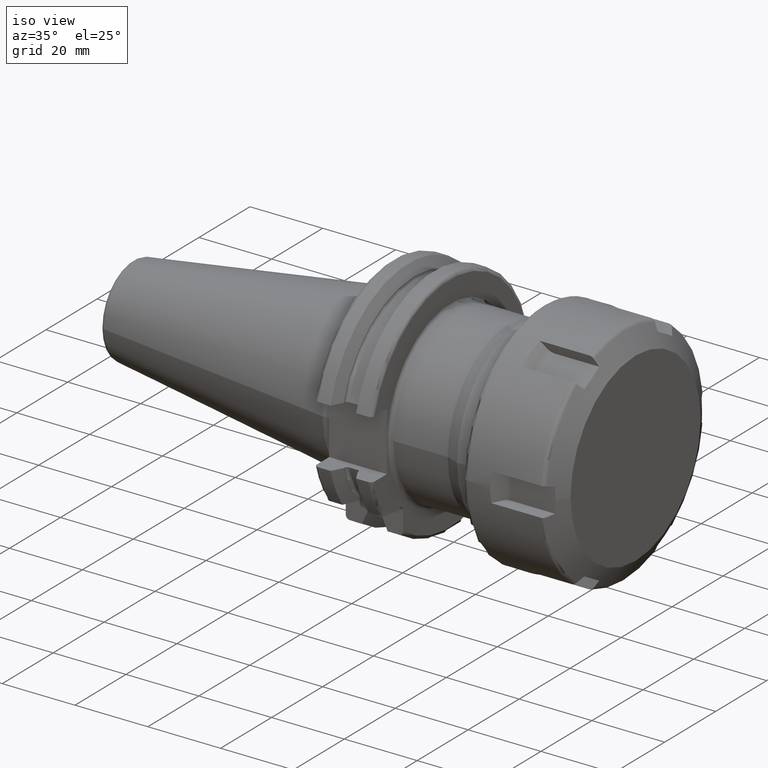
[diagram: clean part render]
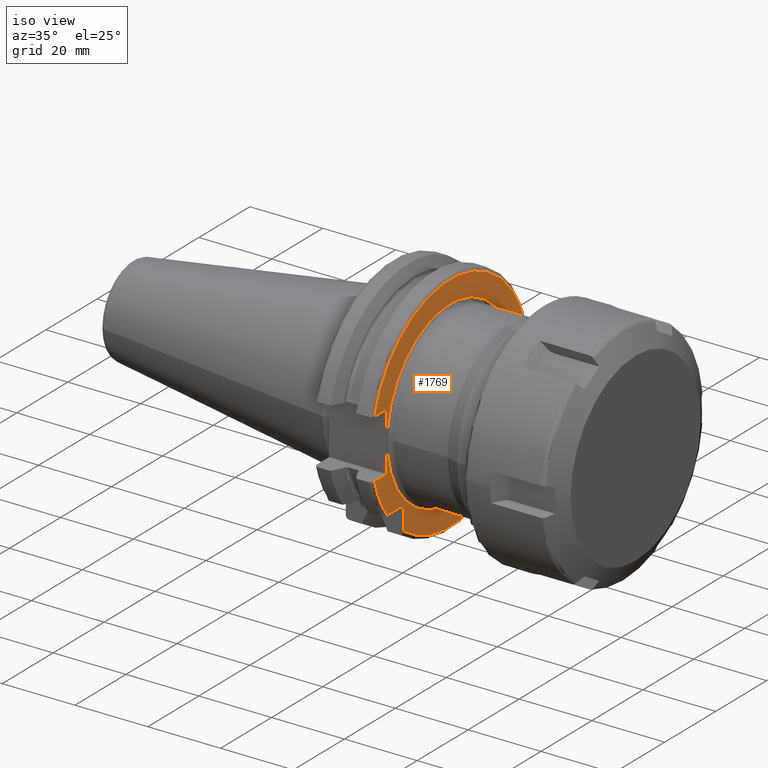
[diagram: same view with one face highlighted and labeled with its STEP entity id]
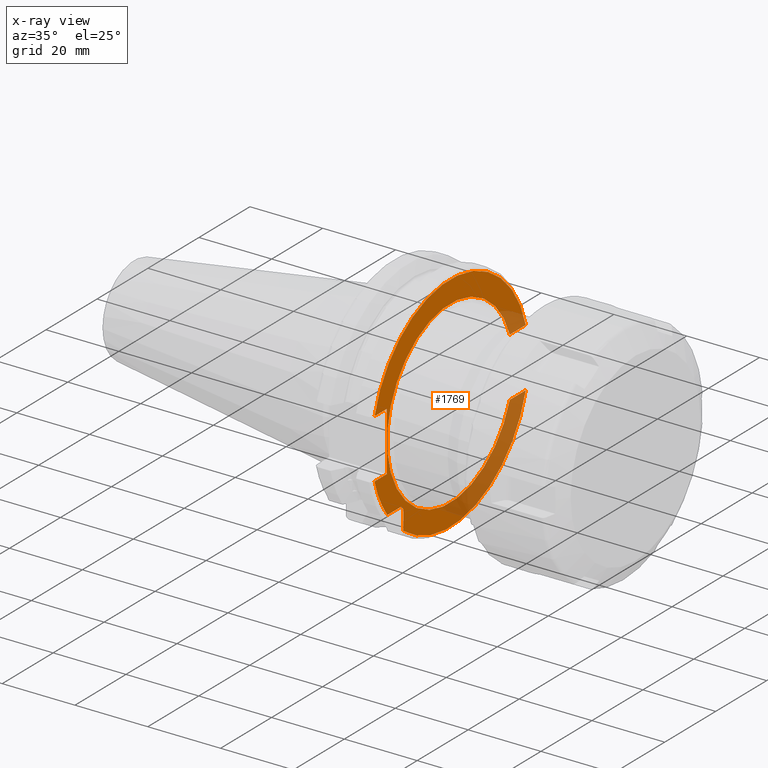
[diagram: x-ray of the same camera — body ghosted, the highlighted face saturated]
A machine part, iso view. The second image highlights one B-rep face of the part: STEP entity #1769.
The next image is the same camera in x-ray: the body ghosted, the highlighted face saturated — about 29% of this face is hidden behind the body in this view.
In plain terms, the highlighted planar face has unit normal (1, 0, 0).
Its self-contained STEP definition (entity closure, byte-faithful):
#134=DIRECTION('',(0.E0,-1.E0,0.E0));
#135=VECTOR('',#134,6.289935128944E0);
#136=CARTESIAN_POINT('',(1.905E1,2.967695075728E1,-8.1E0));
#137=LINE('',#136,#135);
#138=DIRECTION('',(0.E0,0.E0,1.E0));
#139=VECTOR('',#138,4.990259339464E0);
#140=CARTESIAN_POINT('',(1.905E1,-1.835E1,-2.469025933946E1));
#141=LINE('',#140,#139);
#142=DIRECTION('',(0.E0,-1.E0,0.E0));
#143=VECTOR('',#142,4.990259339464E0);
#144=CARTESIAN_POINT('',(1.905E1,-1.97E1,-1.835E1));
#145=LINE('',#144,#143);
#146=DIRECTION('',(0.E0,1.E0,0.E0));
#147=VECTOR('',#146,4.826950757280E0);
#148=CARTESIAN_POINT('',(1.905E1,-2.967695075728E1,-8.1E0));
#149=LINE('',#148,#147);
#150=DIRECTION('',(0.E0,0.E0,1.E0));
#151=VECTOR('',#150,1.62E1);
#152=CARTESIAN_POINT('',(1.905E1,-2.485E1,-8.1E0));
#153=LINE('',#152,#151);
#154=DIRECTION('',(0.E0,1.E0,0.E0));
#155=VECTOR('',#154,4.826950757280E0);
#156=CARTESIAN_POINT('',(1.905E1,-2.967695075728E1,8.1E0));
#157=LINE('',#156,#155);
#158=DIRECTION('',(0.E0,-1.E0,0.E0));
#159=VECTOR('',#158,6.289935128944E0);
#160=CARTESIAN_POINT('',(1.905E1,2.967695075728E1,8.1E0));
#161=LINE('',#160,#159);
#178=CARTESIAN_POINT('',(1.905E1,2.338701562834E1,-8.1E0));
#180=CARTESIAN_POINT('',(1.905E1,0.E0,0.E0));
#181=DIRECTION('',(-1.E0,0.E0,0.E0));
#182=DIRECTION('',(0.E0,9.449299243772E-1,-3.272727272727E-1));
#183=AXIS2_PLACEMENT_3D('',#180,#181,#182);
#331=CARTESIAN_POINT('',(1.905E1,2.967695075728E1,8.1E0));
#342=CARTESIAN_POINT('',(1.905E1,0.E0,0.E0));
#343=DIRECTION('',(1.E0,0.E0,0.E0));
#344=DIRECTION('',(0.E0,9.647119303464E-1,2.633075985372E-1));
#345=AXIS2_PLACEMENT_3D('',#342,#343,#344);
#653=CARTESIAN_POINT('',(1.905E1,-1.97E1,-1.97E1));
#654=DIRECTION('',(-1.E0,0.E0,0.E0));
#655=DIRECTION('',(0.E0,0.E0,1.E0));
#656=AXIS2_PLACEMENT_3D('',#653,#654,#655);
#676=CARTESIAN_POINT('',(1.905E1,2.967695075728E1,-8.1E0));
#689=CARTESIAN_POINT('',(1.905E1,0.E0,0.E0));
#690=DIRECTION('',(-1.E0,0.E0,0.E0));
#691=DIRECTION('',(0.E0,9.647119303464E-1,-2.633075985372E-1));
#692=AXIS2_PLACEMENT_3D('',#689,#690,#691);
#705=CARTESIAN_POINT('',(1.905E1,0.E0,0.E0));
#706=DIRECTION('',(-1.E0,0.E0,0.E0));
#707=DIRECTION('',(0.E0,-8.026089992512E-1,-5.965054855750E-1));
#708=AXIS2_PLACEMENT_3D('',#705,#706,#707);
#1401=CARTESIAN_POINT('',(1.905E1,-2.967695075728E1,-8.1E0));
#1402=CARTESIAN_POINT('',(1.905E1,-2.485E1,-8.1E0));
#1403=VERTEX_POINT('',#1401);
#1404=VERTEX_POINT('',#1402);
#1405=CARTESIAN_POINT('',(1.905E1,-2.485E1,8.1E0));
#1406=VERTEX_POINT('',#1405);
#1407=CARTESIAN_POINT('',(1.905E1,-2.967695075728E1,8.1E0));
#1408=VERTEX_POINT('',#1407);
#1446=VERTEX_POINT('',#331);
#1447=VERTEX_POINT('',#676);
#1456=CARTESIAN_POINT('',(1.905E1,-1.835E1,-2.469025933946E1));
#1457=VERTEX_POINT('',#1456);
#1464=CARTESIAN_POINT('',(1.905E1,-1.97E1,-1.835E1));
#1465=CARTESIAN_POINT('',(1.905E1,-2.469025933946E1,-1.835E1));
#1466=VERTEX_POINT('',#1464);
#1467=VERTEX_POINT('',#1465);
#1468=CARTESIAN_POINT('',(1.905E1,-1.835E1,-1.97E1));
#1469=VERTEX_POINT('',#1468);
#1507=VERTEX_POINT('',#178);
#1524=CARTESIAN_POINT('',(1.905E1,2.338701562834E1,8.1E0));
#1525=VERTEX_POINT('',#1524);
#1739=CARTESIAN_POINT('',(1.905E1,0.E0,0.E0));
#1740=DIRECTION('',(1.E0,0.E0,0.E0));
#1741=DIRECTION('',(0.E0,-1.E0,0.E0));
#1742=AXIS2_PLACEMENT_3D('',#1739,#1740,#1741);
#1743=PLANE('',#1742);
#1745=ORIENTED_EDGE('',*,*,#1744,.F.);
#1746=ORIENTED_EDGE('',*,*,#1707,.F.);
#1748=ORIENTED_EDGE('',*,*,#1747,.T.);
#1750=ORIENTED_EDGE('',*,*,#1749,.T.);
#1752=ORIENTED_EDGE('',*,*,#1751,.F.);
#1754=ORIENTED_EDGE('',*,*,#1753,.T.);
#1756=ORIENTED_EDGE('',*,*,#1755,.T.);
#1758=ORIENTED_EDGE('',*,*,#1757,.T.);
#1760=ORIENTED_EDGE('',*,*,#1759,.T.);
#1762=ORIENTED_EDGE('',*,*,#1761,.F.);
#1764=ORIENTED_EDGE('',*,*,#1763,.F.);
#1766=ORIENTED_EDGE('',*,*,#1765,.T.);
#1767=EDGE_LOOP('',(#1745,#1746,#1748,#1750,#1752,#1754,#1756,#1758,#1760,#1762,
#1764,#1766));
#1768=FACE_OUTER_BOUND('',#1767,.F.);
#1769=ADVANCED_FACE('',(#1768),#1743,.T.);
#184=CIRCLE('',#183,2.475E1);
#346=CIRCLE('',#345,3.07625E1);
#657=CIRCLE('',#656,1.35E0);
#693=CIRCLE('',#692,3.07625E1);
#709=CIRCLE('',#708,3.07625E1);
#1707=EDGE_CURVE('',#1447,#1507,#137,.T.);
#1744=EDGE_CURVE('',#1507,#1525,#184,.T.);
#1747=EDGE_CURVE('',#1447,#1457,#693,.T.);
#1749=EDGE_CURVE('',#1457,#1469,#141,.T.);
#1751=EDGE_CURVE('',#1466,#1469,#657,.T.);
#1753=EDGE_CURVE('',#1466,#1467,#145,.T.);
#1755=EDGE_CURVE('',#1467,#1403,#709,.T.);
#1757=EDGE_CURVE('',#1403,#1404,#149,.T.);
#1759=EDGE_CURVE('',#1404,#1406,#153,.T.);
#1761=EDGE_CURVE('',#1408,#1406,#157,.T.);
#1763=EDGE_CURVE('',#1446,#1408,#346,.T.);
#1765=EDGE_CURVE('',#1446,#1525,#161,.T.);